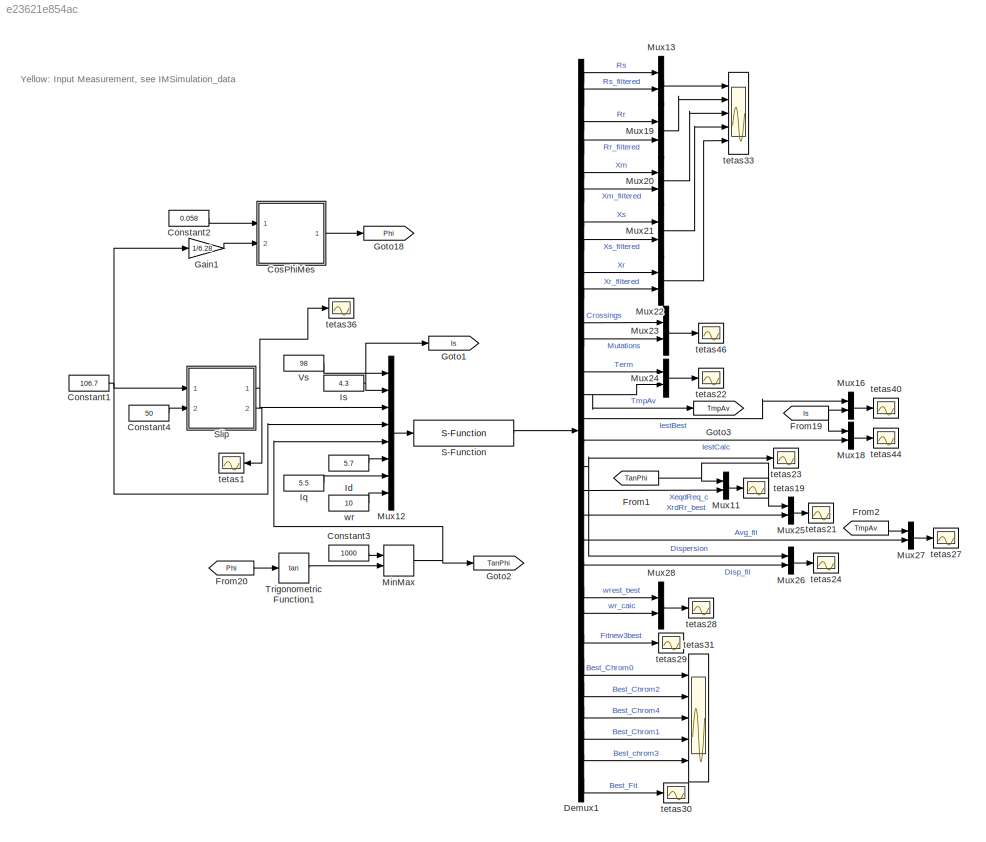
MODEL slx_e23621e854ac
KIND model
BLOCK [Constant] Constant1
  Value = 106.7
BLOCK [Constant] Constant2
  Value = 0.058
BLOCK [Constant] Constant3
  Value = 1000
BLOCK [Constant] Constant4
  Value = 50
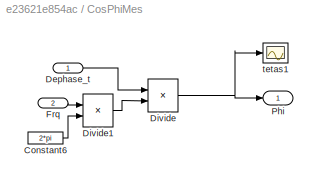
BLOCK [SubSystem] CosPhiMes
  Ports = [2, 1]
  RequestExecContextInheritance = off
BLOCK [Constant] CosPhiMes/Constant6
  Value = 2*pi
BLOCK [Inport] CosPhiMes/Dephase_t
  IconDisplay = Port number
BLOCK [Product] CosPhiMes/Divide
  InputSameDT = off
  Inputs = **
  OutDataTypeStr = Inherit: Inherit via internal rule
  Ports = [2, 1]
  RndMeth = Floor
  SaturateOnIntegerOverflow = off
BLOCK [Product] CosPhiMes/Divide1
  InputSameDT = off
  Inputs = **
  OutDataTypeStr = Inherit: Inherit via internal rule
  Ports = [2, 1]
  RndMeth = Floor
  SaturateOnIntegerOverflow = off
BLOCK [Inport] CosPhiMes/Frq 
  IconDisplay = Port number
  Port = 2
BLOCK [Outport] CosPhiMes/Phi
  IconDisplay = Port number
BLOCK [Scope] CosPhiMes/tetas1
  DataFormat = StructureWithTime
  Floating = off
  MaxDataPoints = 5000000
  NumInputPorts = 1
  Ports = [1]
  SampleTime = 0
  SaveName = ScopeData25
  ShowLegends = off
  TimeRange = 25
  YMax = 3.00752
  YMin = 3.00752
  ZoomMode = yonly
BLOCK [Demux] Demux1
  DisplayOption = bar
  Outputs = 30
  Ports = [1, 30]
BLOCK [From] From1
  GotoTag = TanPhi
BLOCK [From] From19
  GotoTag = Is
BLOCK [From] From2
  GotoTag = TmpAv
BLOCK [From] From20
  GotoTag = Phi
BLOCK [Gain] Gain1
  Gain = 1/6.28
  OutDataTypeStr = Inherit: Inherit via internal rule
  ParamDataTypeStr = Inherit: Inherit via internal rule
  SaturateOnIntegerOverflow = off
BLOCK [Goto] Goto1
  GotoTag = Is
BLOCK [Goto] Goto18
  GotoTag = Phi
BLOCK [Goto] Goto2
  GotoTag = TanPhi
BLOCK [Goto] Goto3
  GotoTag = TmpAv
BLOCK [Constant] Id
  Value = 5.7
BLOCK [Constant] Iq
  Value = 5.5
BLOCK [Constant] Is
  Value = 4.3
BLOCK [MinMax] MinMax
  InputSameDT = off
  Inputs = 2
  Ports = [2, 1]
  SaturateOnIntegerOverflow = off
BLOCK [Mux] Mux11
  DisplayOption = bar
  Inputs = 2
  Ports = [2, 1]
BLOCK [Mux] Mux12
  DisplayOption = bar
  Inputs = 8
  Ports = [8, 1]
BLOCK [Mux] Mux13
  DisplayOption = bar
  Inputs = 2
  Ports = [2, 1]
BLOCK [Mux] Mux16
  DisplayOption = bar
  Inputs = 2
  Ports = [2, 1]
BLOCK [Mux] Mux18
  DisplayOption = bar
  Inputs = 2
  Ports = [2, 1]
BLOCK [Mux] Mux19
  DisplayOption = bar
  Inputs = 2
  Ports = [2, 1]
BLOCK [Mux] Mux20
  DisplayOption = bar
  Inputs = 2
  Ports = [2, 1]
BLOCK [Mux] Mux21
  DisplayOption = bar
  Inputs = 2
  Ports = [2, 1]
BLOCK [Mux] Mux22
  DisplayOption = bar
  Inputs = 2
  Ports = [2, 1]
BLOCK [Mux] Mux23
  DisplayOption = bar
  Inputs = 2
  Ports = [2, 1]
BLOCK [Mux] Mux24
  DisplayOption = bar
  Inputs = 2
  Ports = [2, 1]
BLOCK [Mux] Mux25
  DisplayOption = bar
  Inputs = 2
  Ports = [2, 1]
BLOCK [Mux] Mux26
  DisplayOption = bar
  Inputs = 2
  Ports = [2, 1]
BLOCK [Mux] Mux27
  DisplayOption = bar
  Inputs = 2
  Ports = [2, 1]
BLOCK [Mux] Mux28
  DisplayOption = bar
  Inputs = 2
  Ports = [2, 1]
BLOCK [S-Function] S-Function
  EnableBusSupport = off
  FunctionName = IM_AG_Fit_Sfunc
  Parameters = Rs, Rr, Ls, Lr, Msr
  Ports = [1, 1]
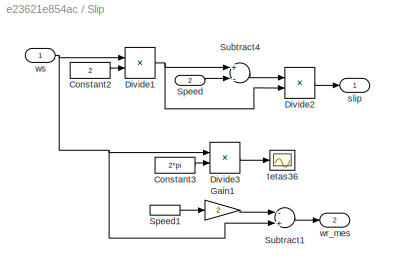
BLOCK [SubSystem] Slip
  Ports = [2, 2]
  RequestExecContextInheritance = off
BLOCK [Constant] Slip/Constant2
  Value = 2
BLOCK [Constant] Slip/Constant3
  Value = 2*pi
BLOCK [Product] Slip/Divide1
  InputSameDT = off
  Inputs = */
  OutDataTypeStr = Inherit: Inherit via internal rule
  Ports = [2, 1]
  RndMeth = Floor
  SaturateOnIntegerOverflow = off
BLOCK [Product] Slip/Divide2
  InputSameDT = off
  Inputs = */
  OutDataTypeStr = Inherit: Inherit via internal rule
  Ports = [2, 1]
  RndMeth = Floor
  SaturateOnIntegerOverflow = off
BLOCK [Product] Slip/Divide3
  InputSameDT = off
  Inputs = */
  OutDataTypeStr = Inherit: Inherit via internal rule
  Ports = [2, 1]
  RndMeth = Floor
  SaturateOnIntegerOverflow = off
BLOCK [Gain] Slip/Gain1
  Gain = 2
  OutDataTypeStr = Inherit: Inherit via internal rule
  ParamDataTypeStr = Inherit: Inherit via internal rule
  SaturateOnIntegerOverflow = off
BLOCK [Inport] Slip/Speed
  IconDisplay = Port number
  Port = 2
BLOCK [InportShadow] Slip/Speed1
  IconDisplay = Port number
  Port = 2
BLOCK [Sum] Slip/Subtract1
  InputSameDT = off
  Inputs = -+
  OutDataTypeStr = Inherit: Inherit via internal rule
  Ports = [2, 1]
  SaturateOnIntegerOverflow = off
BLOCK [Sum] Slip/Subtract4
  InputSameDT = off
  Inputs = +-
  OutDataTypeStr = Inherit: Inherit via internal rule
  Ports = [2, 1]
  SaturateOnIntegerOverflow = off
BLOCK [Outport] Slip/slip
  IconDisplay = Port number
BLOCK [Scope] Slip/tetas36
  DataFormat = StructureWithTime
  Floating = off
  MaxDataPoints = 5000000
  NumInputPorts = 1
  Ports = [1]
  SampleTime = 0
  SaveName = ScopeData44
  ShowLegends = off
  YMax = 0.135023
  YMin = 0.135019
  ZoomMode = yonly
BLOCK [Outport] Slip/wr_mes
  IconDisplay = Port number
  Port = 2
BLOCK [Inport] Slip/ws
  IconDisplay = Port number
BLOCK [Trigonometry] Trigonometric Function1
  Operator = tan
  Ports = [1, 1]
BLOCK [Constant] Vs
  Value = 98
BLOCK [Scope] tetas1
  DataFormat = StructureWithTime
  Floating = off
  MaxDataPoints = 5000000
  NumInputPorts = 1
  Ports = [1]
  SampleTime = 0
  ShowLegends = off
  YMax = 6.8
  YMin = 6.8
  ZoomMode = yonly
BLOCK [Scope] tetas19
  DataFormat = StructureWithTime
  Floating = off
  MaxDataPoints = 5000000
  NumInputPorts = 1
  Ports = [1]
  SampleTime = 0
  SaveName = ScopeData24
  ShowLegends = off
  YMax = 2.7
  YMin = 2.325
  ZoomMode = yonly
BLOCK [Scope] tetas21
  DataFormat = StructureWithTime
  Floating = off
  MaxDataPoints = 5000000
  NumInputPorts = 1
  Ports = [1]
  SampleTime = 0
  SaveName = ScopeData28
  ShowLegends = off
  YMax = 10
  YMin = 2
  ZoomMode = yonly
BLOCK [Scope] tetas22
  DataFormat = StructureWithTime
  Floating = off
  MaxDataPoints = 5000000
  NumInputPorts = 1
  Ports = [1]
  SampleTime = 0
  SaveName = ScopeData29
  ShowLegends = off
  YMax = 6.5
  YMin = 0
  ZoomMode = yonly
BLOCK [Scope] tetas23
  DataFormat = StructureWithTime
  Floating = off
  MaxDataPoints = 5000000
  NumInputPorts = 1
  Ports = [1]
  SampleTime = 0
  SaveName = ScopeData30
  ShowLegends = off
  YMax = 45
  YMin = -45
  ZoomMode = xonly
BLOCK [Scope] tetas24
  DataFormat = StructureWithTime
  Floating = off
  MaxDataPoints = 5000000
  NumInputPorts = 1
  Ports = [1]
  SampleTime = 0
  SaveName = ScopeData31
  ShowLegends = off
  YMax = 25
  YMin = 0
  ZoomMode = yonly
BLOCK [Scope] tetas27
  DataFormat = StructureWithTime
  Floating = off
  MaxDataPoints = 5000000
  NumInputPorts = 1
  Ports = [1]
  SampleTime = 0
  SaveName = ScopeData32
  ShowLegends = off
  YMax = 4
  YMin = 0
  ZoomMode = yonly
BLOCK [Scope] tetas28
  DataFormat = StructureWithTime
  Floating = off
  MaxDataPoints = 5000000
  NumInputPorts = 1
  Ports = [1]
  SampleTime = 0
  SaveName = ScopeData33
  ShowLegends = off
  YMax = 3
  YMin = 0
  ZoomMode = yonly
BLOCK [Scope] tetas29
  DataFormat = StructureWithTime
  Floating = off
  MaxDataPoints = 5000000
  NumInputPorts = 1
  Ports = [1]
  SampleTime = 0
  SaveName = ScopeData47
  ShowLegends = off
  YMax = 150
  YMin = 0
  ZoomMode = yonly
BLOCK [Scope] tetas30
  DataFormat = StructureWithTime
  Floating = off
  MaxDataPoints = 5000000
  NumInputPorts = 1
  Ports = [1]
  SampleTime = 0
  SaveName = ScopeData49
  ShowLegends = off
  YMax = 150
  YMin = 0
  ZoomMode = yonly
BLOCK [Scope] tetas31
  DataFormat = StructureWithTime
  Floating = off
  MaxDataPoints = 5000000
  NumInputPorts = 5
  Ports = [5]
  SampleTime = 0
  SaveName = ScopeData50
  ShowLegends = off
  YMax = 1.78216~3.45611~4.50801~4.49715~4.41458
  YMin = 1.78216~3.45611~4.50801~4.49715~4.41458
  ZoomMode = yonly
BLOCK [Scope] tetas33
  DataFormat = StructureWithTime
  Floating = off
  MaxDataPoints = 5000000
  NumInputPorts = 5
  Ports = [5]
  SampleTime = 0
  SaveName = ScopeData34
  ShowLegends = off
  YMax = 5.627~2.1395~5.655~5.645~5.1775
  YMin = 5.618~2.1355~5.6375~5.6275~5.16
  ZoomMode = xonly
BLOCK [Scope] tetas36
  DataFormat = StructureWithTime
  Floating = off
  MaxDataPoints = 5000000
  NumInputPorts = 1
  Ports = [1]
  SampleTime = 0
  SaveName = ScopeData37
  ShowLegends = off
  YMax = 0.121498
  YMin = 0.109926
  ZoomMode = yonly
BLOCK [Scope] tetas40
  DataFormat = StructureWithTime
  Floating = off
  MaxDataPoints = 5000000
  NumInputPorts = 1
  Ports = [1]
  SampleTime = 0
  SaveName = ScopeData40
  ShowLegends = off
  YMax = 4.5
  YMin = 1.25
  ZoomMode = yonly
BLOCK [Scope] tetas44
  DataFormat = StructureWithTime
  Floating = off
  MaxDataPoints = 5000000
  NumInputPorts = 1
  Ports = [1]
  SampleTime = 0
  SaveName = ScopeData45
  ShowLegends = off
  YMax = 9.43485
  YMin = 9.43385
  ZoomMode = xonly
BLOCK [Scope] tetas46
  DataFormat = StructureWithTime
  Floating = off
  MaxDataPoints = 5000000
  NumInputPorts = 1
  Ports = [1]
  SampleTime = 0
  SaveName = ScopeData48
  ShowLegends = off
  YMax = 230000
  YMin = 145000
  ZoomMode = xonly
BLOCK [Constant] wr
  Value = 10
ANNOTATION (root): Yellow: Input Measurement, see IMSimulation_data
NET Constant1:1 -> Gain1:1, Mux12:4, Slip:1
LINE Constant2:1 -> CosPhiMes:1
LINE Constant3:1 -> MinMax:1
LINE Constant4:1 -> Slip:2
LINE CosPhiMes/Constant6:1 -> CosPhiMes/Divide1:2
LINE CosPhiMes/Dephase_t:1 -> CosPhiMes/Divide:1
LINE CosPhiMes/Divide1:1 -> CosPhiMes/Divide:2
NET CosPhiMes/Divide:1 -> CosPhiMes/Phi:1, CosPhiMes/tetas1:1
LINE CosPhiMes/Frq :1 -> CosPhiMes/Divide1:1
LINE CosPhiMes:1 -> Goto18:1
LINE Demux1:1 -> Mux13:1
LINE Demux1:10 -> Mux22:2
LINE Demux1:11 -> Mux23:1
LINE Demux1:12 -> Mux23:2
LINE Demux1:13 -> Mux24:1
NET Demux1:14 -> Goto3:1, Mux24:2
LINE Demux1:15 -> Mux16:1
LINE Demux1:16 -> Mux18:2
NET Demux1:17 -> Mux26:1, tetas23:1
LINE Demux1:18 -> Mux11:2
LINE Demux1:19 -> Mux25:2
LINE Demux1:2 -> Mux13:2
LINE Demux1:20 -> Mux27:2
LINE Demux1:21 -> Mux26:2
LINE Demux1:22 -> Mux28:1
LINE Demux1:23 -> Mux28:2
LINE Demux1:24 -> tetas29:1
LINE Demux1:25 -> tetas31:1
LINE Demux1:26 -> tetas31:2
LINE Demux1:27 -> tetas31:3
LINE Demux1:28 -> tetas31:4
LINE Demux1:29 -> tetas31:5
LINE Demux1:3 -> Mux19:1
LINE Demux1:30 -> tetas30:1
LINE Demux1:4 -> Mux19:2
LINE Demux1:5 -> Mux20:1
LINE Demux1:6 -> Mux20:2
LINE Demux1:7 -> Mux21:1
LINE Demux1:8 -> Mux21:2
LINE Demux1:9 -> Mux22:1
NET From19:1 -> Mux16:2, Mux18:1
NET From1:1 -> Mux11:1, Mux25:1
LINE From20:1 -> Trigonometric Function1:1
LINE From2:1 -> Mux27:1
LINE Gain1:1 -> CosPhiMes:2
LINE Id:1 -> Mux12:6
LINE Iq:1 -> Mux12:7
NET Is:1 -> Goto1:1, Mux12:2
NET MinMax:1 -> Goto2:1, Mux12:5
LINE Mux11:1 -> tetas19:1
LINE Mux12:1 -> S-Function:1
LINE Mux13:1 -> tetas33:1
LINE Mux16:1 -> tetas40:1
LINE Mux18:1 -> tetas44:1
LINE Mux19:1 -> tetas33:2
LINE Mux20:1 -> tetas33:3
LINE Mux21:1 -> tetas33:4
LINE Mux22:1 -> tetas33:5
LINE Mux23:1 -> tetas46:1
LINE Mux24:1 -> tetas22:1
LINE Mux25:1 -> tetas21:1
LINE Mux26:1 -> tetas24:1
LINE Mux27:1 -> tetas27:1
LINE Mux28:1 -> tetas28:1
LINE S-Function:1 -> Demux1:1
LINE Slip/Constant2:1 -> Slip/Divide1:2
LINE Slip/Constant3:1 -> Slip/Divide3:2
NET Slip/Divide1:1 -> Slip/Divide2:2, Slip/Subtract4:1
LINE Slip/Divide2:1 -> Slip/slip:1
LINE Slip/Divide3:1 -> Slip/tetas36:1
LINE Slip/Gain1:1 -> Slip/Subtract1:1
LINE Slip/Speed1:1 -> Slip/Gain1:1
LINE Slip/Speed:1 -> Slip/Subtract4:2
LINE Slip/Subtract1:1 -> Slip/wr_mes:1
LINE Slip/Subtract4:1 -> Slip/Divide2:1
NET Slip/ws:1 -> Slip/Divide1:1, Slip/Divide3:1, Slip/Subtract1:2
NET Slip:1 -> Mux12:3, tetas36:1
LINE Slip:2 -> tetas1:1
LINE Trigonometric Function1:1 -> MinMax:2
LINE Vs:1 -> Mux12:1
LINE wr:1 -> Mux12:8
note: NET lines group one-source signal fan-out (src -> all destinations, sorted); 1:1 wires keep LINE
